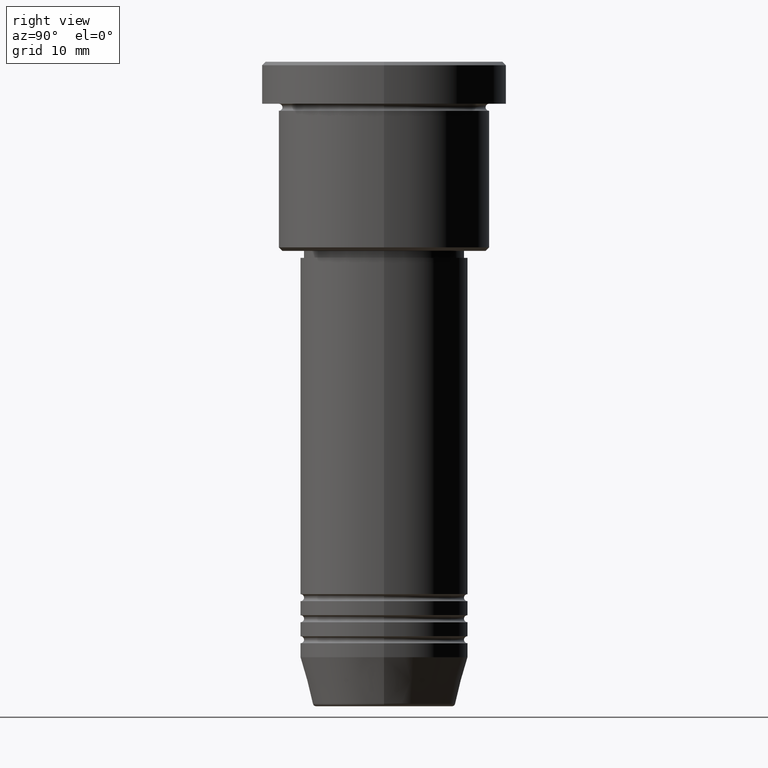
[diagram: clean part render]
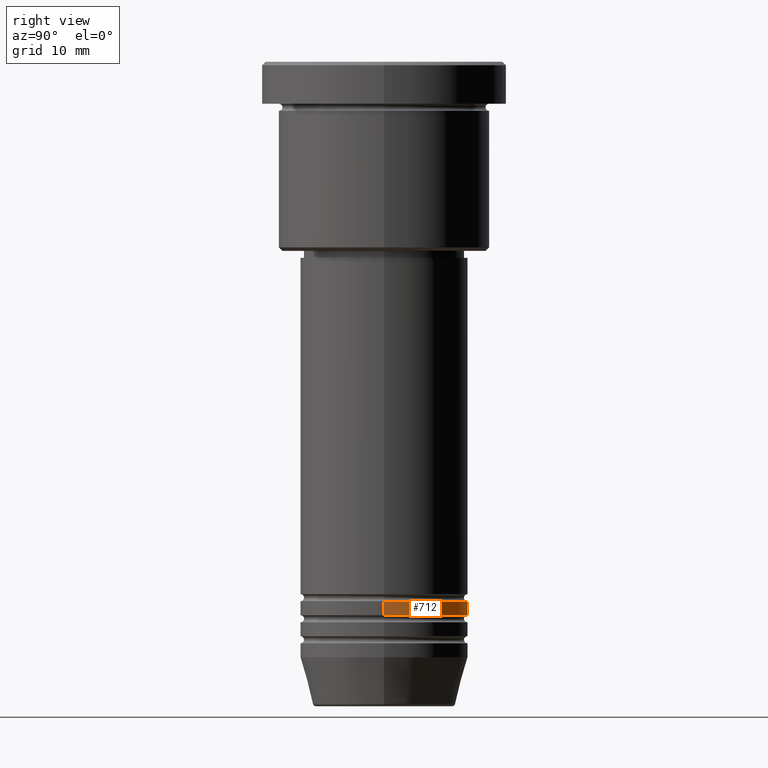
[diagram: same view with one face highlighted and labeled with its STEP entity id]
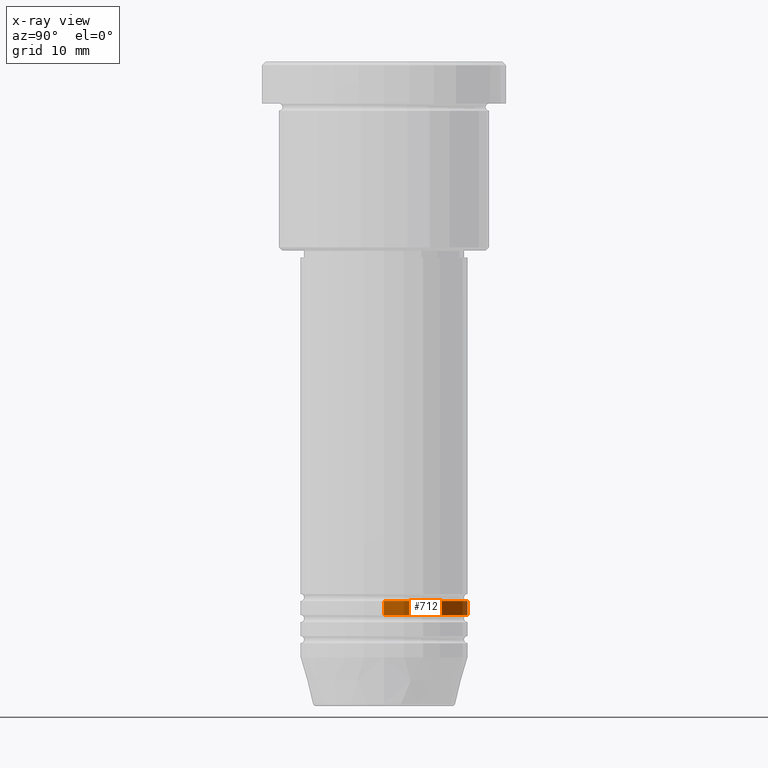
[diagram: x-ray of the same camera — body ghosted, the highlighted face saturated]
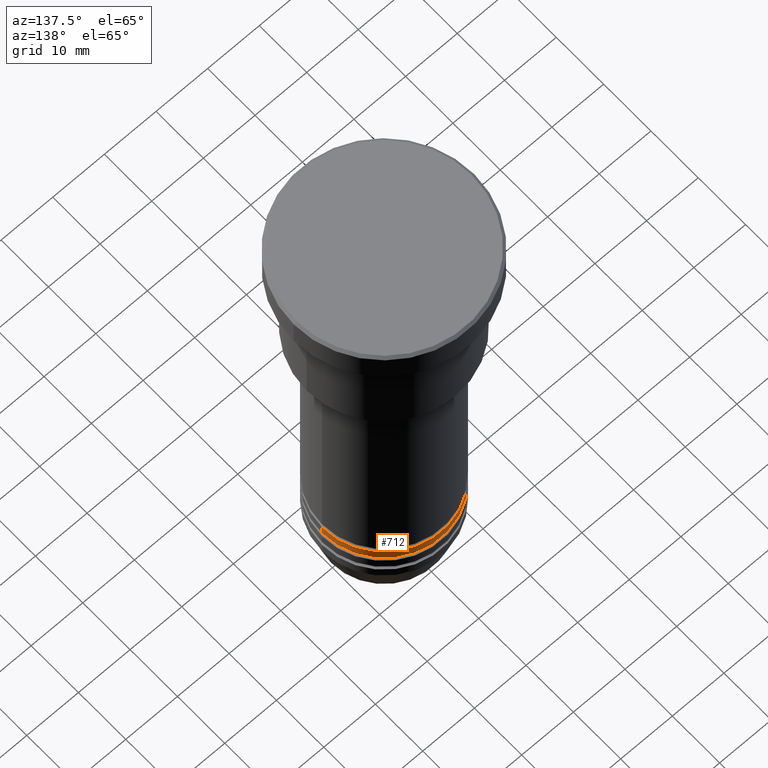
[diagram: same view with one face highlighted and labeled with its STEP entity id]
A machine part, right view. The second image highlights one B-rep face of the part: STEP entity #712.
The next image is the same camera in x-ray: the body ghosted, the highlighted face saturated — about 0% of this face is hidden behind the body in this view.
A second angle (auxiliary view) of the same face is appended — the face is thin or edge-on in the first view.
In plain terms, the highlighted cylindrical surface (partial cylindrical patch) has radius 12 mm, axis along (-0, -0, 1).
Its self-contained STEP definition (entity closure, byte-faithful):
#1 = ORIENTED_EDGE ( 'NONE', *, *, #282, .T. ) ;
#45 = DIRECTION ( 'NONE',  ( 1.000000000000000000, 0.000000000000000000, 0.000000000000000000 ) ) ;
#69 = AXIS2_PLACEMENT_3D ( 'NONE', #408, #472, #832 ) ;
#72 = DIRECTION ( 'NONE',  ( -0.000000000000000000, -0.000000000000000000, 1.000000000000000000 ) ) ;
#124 = VERTEX_POINT ( 'NONE', #927 ) ;
#141 = CARTESIAN_POINT ( 'NONE',  ( -12.00000000000000000, 1.469576158976823947E-15, -78.99999999999997158 ) ) ;
#143 = LINE ( 'NONE', #391, #825 ) ;
#191 = AXIS2_PLACEMENT_3D ( 'NONE', #320, #1017, #1118 ) ;
#282 = EDGE_CURVE ( 'NONE', #898, #124, #143, .T. ) ;
#316 = VERTEX_POINT ( 'NONE', #938 ) ;
#320 = CARTESIAN_POINT ( 'NONE',  ( 0.000000000000000000, 0.000000000000000000, 0.000000000000000000 ) ) ;
#390 = CARTESIAN_POINT ( 'NONE',  ( 0.000000000000000000, 0.000000000000000000, -78.99999999999997158 ) ) ;
#391 = CARTESIAN_POINT ( 'NONE',  ( -12.00000000000000000, 1.469576158976823947E-15, 0.000000000000000000 ) ) ;
#401 = EDGE_CURVE ( 'NONE', #316, #449, #496, .T. ) ;
#402 = CYLINDRICAL_SURFACE ( 'NONE', #191, 12.00000000000000000 ) ;
#408 = CARTESIAN_POINT ( 'NONE',  ( 0.000000000000000000, 0.000000000000000000, -76.99999999999997158 ) ) ;
#440 = VECTOR ( 'NONE', #72, 1000.000000000000000 ) ;
#449 = VERTEX_POINT ( 'NONE', #1071 ) ;
#472 = DIRECTION ( 'NONE',  ( -0.000000000000000000, -0.000000000000000000, 1.000000000000000000 ) ) ;
#496 = LINE ( 'NONE', #781, #440 ) ;
#578 = FACE_OUTER_BOUND ( 'NONE', #860, .T. ) ;
#582 = CIRCLE ( 'NONE', #69, 12.00000000000000000 ) ;
#659 = AXIS2_PLACEMENT_3D ( 'NONE', #390, #1126, #45 ) ;
#694 = ORIENTED_EDGE ( 'NONE', *, *, #401, .F. ) ;
#712 = ADVANCED_FACE ( 'NONE', ( #578 ), #402, .T. ) ;
#715 = ORIENTED_EDGE ( 'NONE', *, *, #797, .T. ) ;
#739 = EDGE_CURVE ( 'NONE', #449, #124, #582, .T. ) ;
#754 = DIRECTION ( 'NONE',  ( -0.000000000000000000, -0.000000000000000000, 1.000000000000000000 ) ) ;
#781 = CARTESIAN_POINT ( 'NONE',  ( 12.00000000000000000, 0.000000000000000000, 0.000000000000000000 ) ) ;
#797 = EDGE_CURVE ( 'NONE', #316, #898, #1144, .T. ) ;
#825 = VECTOR ( 'NONE', #754, 1000.000000000000000 ) ;
#832 = DIRECTION ( 'NONE',  ( 1.000000000000000000, 0.000000000000000000, 0.000000000000000000 ) ) ;
#860 = EDGE_LOOP ( 'NONE', ( #715, #1, #882, #694 ) ) ;
#882 = ORIENTED_EDGE ( 'NONE', *, *, #739, .F. ) ;
#898 = VERTEX_POINT ( 'NONE', #141 ) ;
#927 = CARTESIAN_POINT ( 'NONE',  ( -12.00000000000000000, 1.469576158976823947E-15, -76.99999999999997158 ) ) ;
#938 = CARTESIAN_POINT ( 'NONE',  ( 12.00000000000000000, 0.000000000000000000, -78.99999999999997158 ) ) ;
#1017 = DIRECTION ( 'NONE',  ( -0.000000000000000000, -0.000000000000000000, 1.000000000000000000 ) ) ;
#1071 = CARTESIAN_POINT ( 'NONE',  ( 12.00000000000000000, 0.000000000000000000, -76.99999999999997158 ) ) ;
#1118 = DIRECTION ( 'NONE',  ( 1.000000000000000000, 0.000000000000000000, 0.000000000000000000 ) ) ;
#1126 = DIRECTION ( 'NONE',  ( -0.000000000000000000, -0.000000000000000000, 1.000000000000000000 ) ) ;
#1144 = CIRCLE ( 'NONE', #659, 12.00000000000000000 ) ;